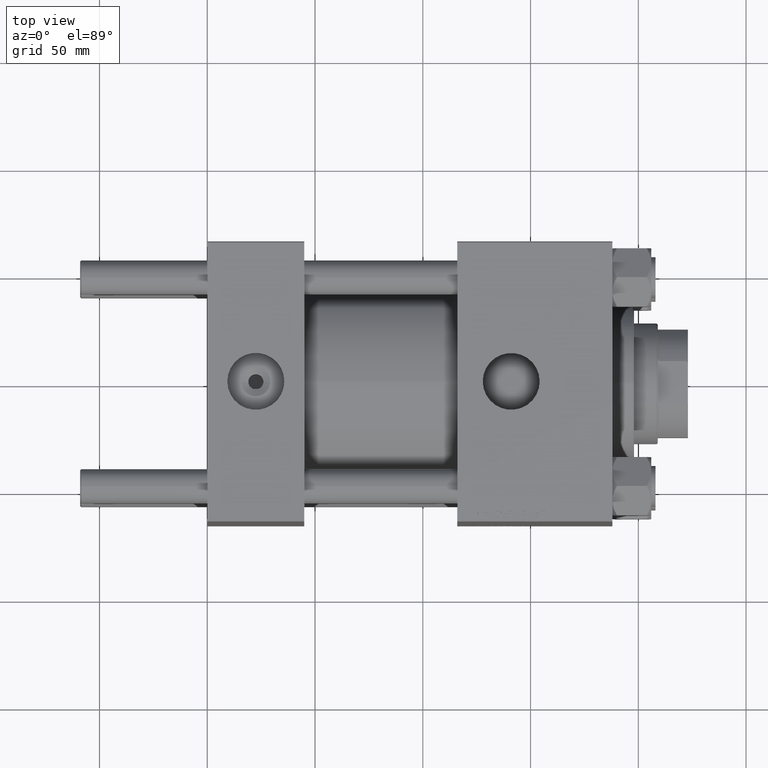
[diagram: clean part render]
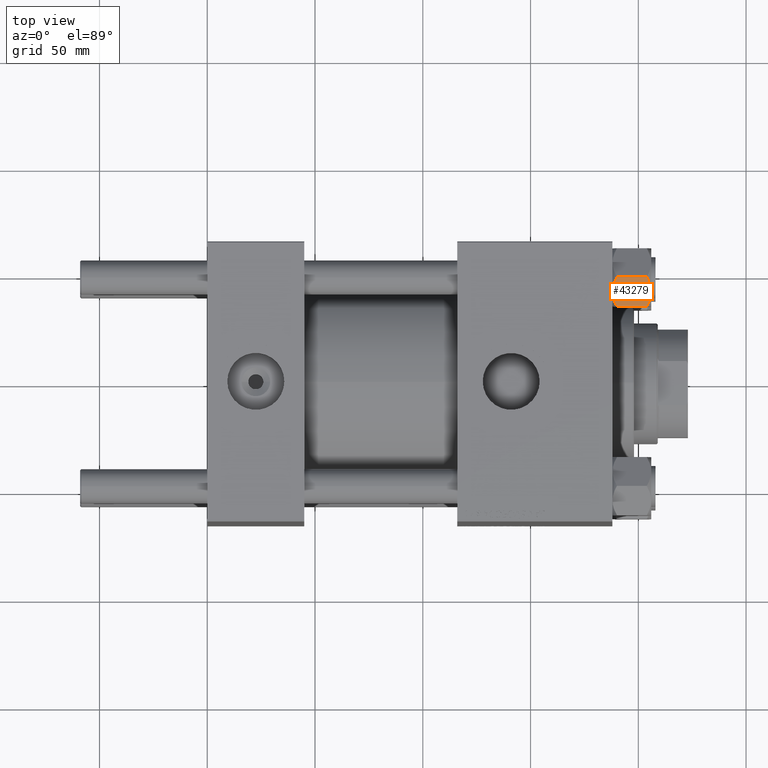
[diagram: same view with one face highlighted and labeled with its STEP entity id]
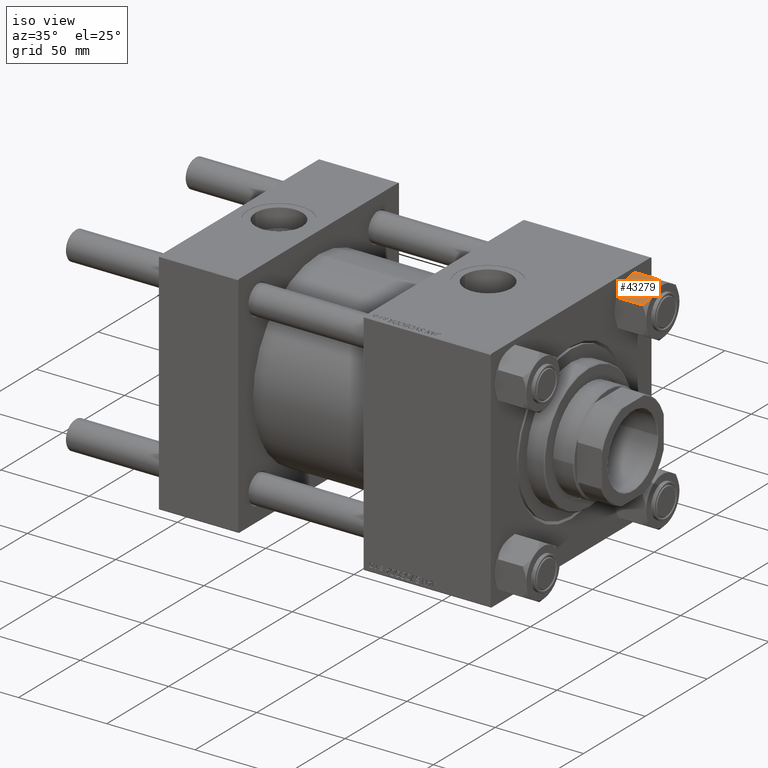
[diagram: same view with one face highlighted and labeled with its STEP entity id]
A machine part, top view. The second image highlights one B-rep face of the part: STEP entity #43279.
A second angle (iso view) of the same face is appended — the face is thin or edge-on in the first view.
In plain terms, the highlighted planar face has unit normal (-0, 0.5, -0.866).
Its self-contained STEP definition (entity closure, byte-faithful):
#57 = CARTESIAN_POINT ( 'NONE',  ( -10.40215497533437627, 9.037572688741338567, -17.80281335400754372 ) ) ;
#127 = LINE ( 'NONE', #32673, #24300 ) ;
#1848 = LINE ( 'NONE', #14019, #16539 ) ;
#3059 = CARTESIAN_POINT ( 'NONE',  ( -12.37702203890362895, 5.617002596445053619, -7.928228386300251174E-16 ) ) ;
#3070 = LINE ( 'NONE', #43306, #15983 ) ;
#3259 = CARTESIAN_POINT ( 'NONE',  ( -14.92760668674625180, 1.199260397376455067, -16.58801072835993295 ) ) ;
#3804 = LINE ( 'NONE', #19964, #32401 ) ;
#4481 = ORIENTED_EDGE ( 'NONE', *, *, #10403, .F. ) ;
#5614 = EDGE_CURVE ( 'NONE', #9292, #5833, #21792, .T. ) ;
#5833 = VERTEX_POINT ( 'NONE', #37326 ) ;
#6052 = EDGE_CURVE ( 'NONE', #35981, #28690, #27526, .T. ) ;
#6608 = CARTESIAN_POINT ( 'NONE',  ( -7.810000000000002274, 13.52731680711293549, -1.999999999999998224 ) ) ;
#7653 = DIRECTION ( 'NONE',  ( -0.4999999999999998335, -0.8660254037844387076, 0.000000000000000000 ) ) ;
#9292 = VERTEX_POINT ( 'NONE', #31191 ) ;
#9658 = CARTESIAN_POINT ( 'NONE',  ( -8.502393313253762130, 12.32805640973647954, -1.411989271640067711 ) ) ;
#10403 = EDGE_CURVE ( 'NONE', #29025, #35981, #49864, .T. ) ;
#10642 = EDGE_CURVE ( 'NONE', #5833, #43357, #25201, .T. ) ;
#11006 = CARTESIAN_POINT ( 'NONE',  ( -15.52647173767732269, 0.1619957022865083085, -2.000000000000000000 ) ) ;
#11015 = DIRECTION ( 'NONE',  ( -0.000000000000000000, -0.000000000000000000, 1.000000000000000000 ) ) ;
#11149 = VERTEX_POINT ( 'NONE', #44339 ) ;
#11190 = CARTESIAN_POINT ( 'NONE',  ( -9.124083218049246824, 11.25125790807802950, -17.05261278537718539 ) ) ;
#11197 = CARTESIAN_POINT ( 'NONE',  ( -13.36540581434587338, 3.905071680002323742, -17.61639331488793303 ) ) ;
#11266 = CARTESIAN_POINT ( 'NONE',  ( -11.71500000000000341, 6.763658403556464194, 0.000000000000000000 ) ) ;
#11453 = CARTESIAN_POINT ( 'NONE',  ( -11.71500000000000341, 6.763658403556464194, -18.00000000000000000 ) ) ;
#11459 = CARTESIAN_POINT ( 'NONE',  ( -12.38621571200405569, 5.601078687526927169, -17.94910618364698252 ) ) ;
#13098 = CARTESIAN_POINT ( 'NONE',  ( -11.04378428799595291, 7.926238119586001218, -0.05089381635301579859 ) ) ;
#14019 = CARTESIAN_POINT ( 'NONE',  ( -15.62000000000000277, -9.678749765951853952E-16, -16.00000000000000000 ) ) ;
#15164 = ORIENTED_EDGE ( 'NONE', *, *, #6052, .F. ) ;
#15183 = B_SPLINE_CURVE_WITH_KNOTS ( 'NONE', 3,
 ( #11453, #23894, #57, #47463, #11190, #43746, #47726, #40038 ),
 .UNSPECIFIED., .F., .F.,
 ( 4, 2, 2, 4 ),
 ( 0.007890825462474422222, 0.01181022244528553283, 0.01376992093669108727, 0.01572961942809664518 ),
 .UNSPECIFIED. ) ;
#15190 = CARTESIAN_POINT ( 'NONE',  ( -15.52647173767732269, 0.1619957022865083085, -2.000000000000000000 ) ) ;
#15365 = CARTESIAN_POINT ( 'NONE',  ( -15.62000000000000277, -9.678749765951853952E-16, -18.00000000000000000 ) ) ;
#15983 = VECTOR ( 'NONE', #11015, 1000.000000000000000 ) ;
#16539 = VECTOR ( 'NONE', #49769, 1000.000000000000000 ) ;
#16723 = VERTEX_POINT ( 'NONE', #31810 ) ;
#16814 = CARTESIAN_POINT ( 'NONE',  ( -11.71500000000000341, 6.763658403556464194, 0.000000000000000000 ) ) ;
#17547 = DIRECTION ( 'NONE',  ( 0.4999999999999998335, 0.8660254037844387076, 0.000000000000000000 ) ) ;
#17709 = CARTESIAN_POINT ( 'NONE',  ( -11.71500000000000341, 6.763658403556464194, -18.00000000000000000 ) ) ;
#17710 = ORIENTED_EDGE ( 'NONE', *, *, #40677, .F. ) ;
#19325 = CARTESIAN_POINT ( 'NONE',  ( -15.62000000000000277, -9.678749765951853952E-16, -1.999999999999998224 ) ) ;
#19446 = EDGE_CURVE ( 'NONE', #11149, #24978, #1848, .T. ) ;
#19578 = VERTEX_POINT ( 'NONE', #6608 ) ;
#19964 = CARTESIAN_POINT ( 'NONE',  ( -15.62000000000000277, -9.678749765951853952E-16, -18.00000000000000000 ) ) ;
#20193 = CARTESIAN_POINT ( 'NONE',  ( -14.31545111198821374, 2.259544954993896848, -17.08577173959729834 ) ) ;
#20796 = CARTESIAN_POINT ( 'NONE',  ( -11.38181071908714870, 7.340759166634867938, -9.266540442962045709E-16 ) ) ;
#21792 = LINE ( 'NONE', #46658, #24636 ) ;
#23894 = CARTESIAN_POINT ( 'NONE',  ( -11.05297796109638675, 7.910314210667877433, -18.00000000000000000 ) ) ;
#24104 = DIRECTION ( 'NONE',  ( 0.4999999999999998335, 0.8660254037844387076, 0.000000000000000000 ) ) ;
#24300 = VECTOR ( 'NONE', #48824, 1000.000000000000000 ) ;
#24636 = VECTOR ( 'NONE', #17547, 1000.000000000000000 ) ;
#24655 = ORIENTED_EDGE ( 'NONE', *, *, #5614, .F. ) ;
#24757 = CARTESIAN_POINT ( 'NONE',  ( -10.06459418565412811, 9.622245127110607754, -0.3836066851120605858 ) ) ;
#24978 = VERTEX_POINT ( 'NONE', #46261 ) ;
#25201 = B_SPLINE_CURVE_WITH_KNOTS ( 'NONE', 3,
 ( #32104, #3259, #20193, #11197, #36072, #11459, #36573, #31594 ),
 .UNSPECIFIED., .F., .F.,
 ( 4, 2, 2, 4 ),
 ( 4.472842641949058562E-07, 0.003945636373369310924, 0.005918230917921867007, 0.007890825462474422222 ),
 .UNSPECIFIED. ) ;
#25928 = EDGE_CURVE ( 'NONE', #9292, #28690, #3804, .T. ) ;
#26443 = B_SPLINE_CURVE_WITH_KNOTS ( 'NONE', 3,
 ( #29514, #9658, #40900, #24757, #49635, #13098, #20796, #16814 ),
 .UNSPECIFIED., .F., .F.,
 ( 4, 2, 2, 4 ),
 ( 4.472842641915697111E-07, 0.003945636373369306588, 0.005918230917921864405, 0.007890825462474420487 ),
 .UNSPECIFIED. ) ;
#27526 = LINE ( 'NONE', #19325, #51715 ) ;
#28690 = VERTEX_POINT ( 'NONE', #45685 ) ;
#29025 = VERTEX_POINT ( 'NONE', #36901 ) ;
#29514 = CARTESIAN_POINT ( 'NONE',  ( -7.903528262322684128, 13.36532110482642111, -2.000000000000000000 ) ) ;
#30000 = ORIENTED_EDGE ( 'NONE', *, *, #42645, .F. ) ;
#31141 = CARTESIAN_POINT ( 'NONE',  ( -13.02784502466562877, 4.489744118371585380, -0.1971866459924576653 ) ) ;
#31191 = CARTESIAN_POINT ( 'NONE',  ( -15.62000000000000277, -9.678749765951853952E-16, -16.00000000000000000 ) ) ;
#31594 = CARTESIAN_POINT ( 'NONE',  ( -11.71500000000000341, 6.763658403556464194, -18.00000000000000000 ) ) ;
#31810 = CARTESIAN_POINT ( 'NONE',  ( -7.903528262322684128, 13.36532110482642111, -2.000000000000000000 ) ) ;
#32104 = CARTESIAN_POINT ( 'NONE',  ( -15.52647173767732269, 0.1619957022865083085, -16.00000000000000000 ) ) ;
#32401 = VECTOR ( 'NONE', #47503, 1000.000000000000000 ) ;
#32673 = CARTESIAN_POINT ( 'NONE',  ( -15.62000000000000277, -9.678749765951853952E-16, -1.999999999999998224 ) ) ;
#32912 = ORIENTED_EDGE ( 'NONE', *, *, #10642, .F. ) ;
#33224 = ORIENTED_EDGE ( 'NONE', *, *, #25928, .T. ) ;
#35981 = VERTEX_POINT ( 'NONE', #15190 ) ;
#36072 = CARTESIAN_POINT ( 'NONE',  ( -13.04337073483127973, 4.462852799541082938, -17.75691532989869614 ) ) ;
#36573 = CARTESIAN_POINT ( 'NONE',  ( -12.04818928091285635, 6.186557640478059561, -17.99999999999999289 ) ) ;
#36869 = ORIENTED_EDGE ( 'NONE', *, *, #50644, .F. ) ;
#36901 = CARTESIAN_POINT ( 'NONE',  ( -11.71500000000000341, 6.763658403556464194, 0.000000000000000000 ) ) ;
#37326 = CARTESIAN_POINT ( 'NONE',  ( -15.52647173767732269, 0.1619957022865083085, -16.00000000000000000 ) ) ;
#39980 = FACE_OUTER_BOUND ( 'NONE', #42704, .T. ) ;
#40038 = CARTESIAN_POINT ( 'NONE',  ( -7.903528262322684128, 13.36532110482642111, -16.00000000000000000 ) ) ;
#40677 = EDGE_CURVE ( 'NONE', #43357, #11149, #15183, .T. ) ;
#40900 = CARTESIAN_POINT ( 'NONE',  ( -9.114548888011791306, 11.26777185211903110, -0.9142282604026947812 ) ) ;
#42645 = EDGE_CURVE ( 'NONE', #19578, #16723, #127, .T. ) ;
#42704 = EDGE_LOOP ( 'NONE', ( #24655, #33224, #15164, #4481, #36869, #30000, #43178, #49591, #17710, #32912 ) ) ;
#42779 = CARTESIAN_POINT ( 'NONE',  ( -13.99051971937273642, 2.822342635978010161, -0.7317196846281152078 ) ) ;
#43178 = ORIENTED_EDGE ( 'NONE', *, *, #46016, .F. ) ;
#43279 = ADVANCED_FACE ( 'NONE', ( #39980 ), #48190, .F. ) ;
#43306 = CARTESIAN_POINT ( 'NONE',  ( -7.810000000000002274, 13.52731680711293549, -18.00000000000000000 ) ) ;
#43357 = VERTEX_POINT ( 'NONE', #17709 ) ;
#43746 = CARTESIAN_POINT ( 'NONE',  ( -8.506059550806625680, 12.32170630002229395, -16.56553707812499354 ) ) ;
#43804 = AXIS2_PLACEMENT_3D ( 'NONE', #15365, #52169, #24104 ) ;
#44339 = CARTESIAN_POINT ( 'NONE',  ( -7.903528262322684128, 13.36532110482642111, -16.00000000000000000 ) ) ;
#45685 = CARTESIAN_POINT ( 'NONE',  ( -15.62000000000000277, -9.678749765951853952E-16, -1.999999999999998224 ) ) ;
#46016 = EDGE_CURVE ( 'NONE', #24978, #19578, #3070, .T. ) ;
#46261 = CARTESIAN_POINT ( 'NONE',  ( -7.810000000000002274, 13.52731680711293549, -16.00000000000000000 ) ) ;
#46658 = CARTESIAN_POINT ( 'NONE',  ( -15.62000000000000277, -9.678749765951853952E-16, -16.00000000000000000 ) ) ;
#47283 = CARTESIAN_POINT ( 'NONE',  ( -14.30591678195076000, 2.276058899034898886, -0.9473872146228137225 ) ) ;
#47463 = CARTESIAN_POINT ( 'NONE',  ( -9.439480280627265074, 10.70497417113491601, -17.26828031537188579 ) ) ;
#47503 = DIRECTION ( 'NONE',  ( -0.000000000000000000, -0.000000000000000000, 1.000000000000000000 ) ) ;
#47533 = CARTESIAN_POINT ( 'NONE',  ( -15.22736220980735489, 0.6800686015852296373, -1.706311779141443496 ) ) ;
#47726 = CARTESIAN_POINT ( 'NONE',  ( -8.202637790192651934, 12.84724820552770197, -16.29368822085855584 ) ) ;
#48190 = PLANE ( 'NONE',  #43804 ) ;
#48824 = DIRECTION ( 'NONE',  ( -0.4999999999999998335, -0.8660254037844387076, 0.000000000000000000 ) ) ;
#49591 = ORIENTED_EDGE ( 'NONE', *, *, #19446, .F. ) ;
#49635 = CARTESIAN_POINT ( 'NONE',  ( -10.38662926516872531, 9.064464007571846338, -0.2430846701012981670 ) ) ;
#49769 = DIRECTION ( 'NONE',  ( 0.4999999999999998335, 0.8660254037844387076, 0.000000000000000000 ) ) ;
#49864 = B_SPLINE_CURVE_WITH_KNOTS ( 'NONE', 3,
 ( #11266, #3059, #31141, #42779, #47283, #51510, #47533, #11006 ),
 .UNSPECIFIED., .F., .F.,
 ( 4, 2, 2, 4 ),
 ( 0.007890825462474420487, 0.01181022244528553283, 0.01376992093669108727, 0.01572961942809664171 ),
 .UNSPECIFIED. ) ;
#50644 = EDGE_CURVE ( 'NONE', #16723, #29025, #26443, .T. ) ;
#51510 = CARTESIAN_POINT ( 'NONE',  ( -14.92394044919337759, 1.205610507090636219, -1.434462921875002683 ) ) ;
#51715 = VECTOR ( 'NONE', #7653, 1000.000000000000000 ) ;
#52169 = DIRECTION ( 'NONE',  ( 0.8660254037844387076, -0.4999999999999998335, 0.000000000000000000 ) ) ;